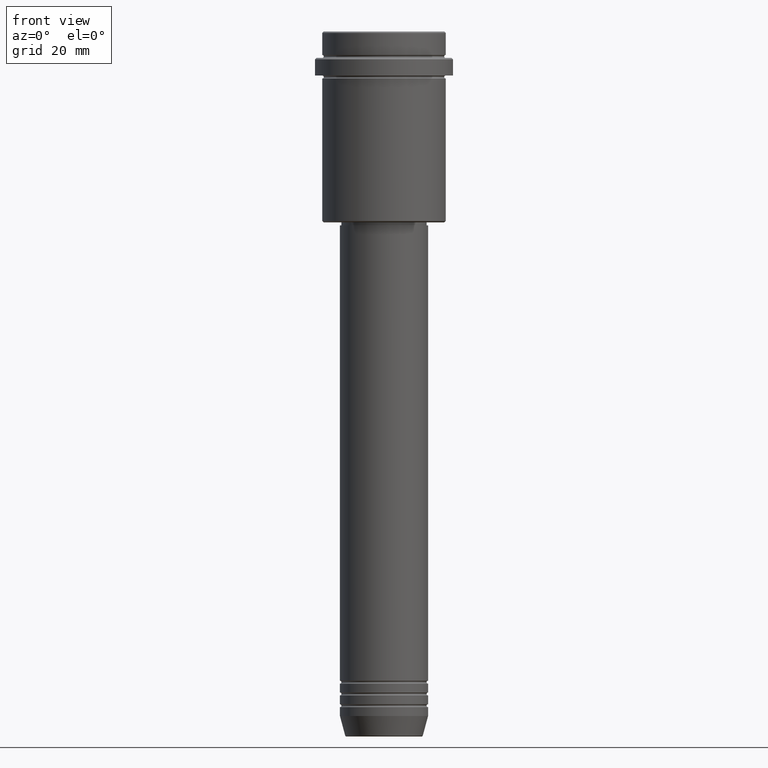
[diagram: clean part render]
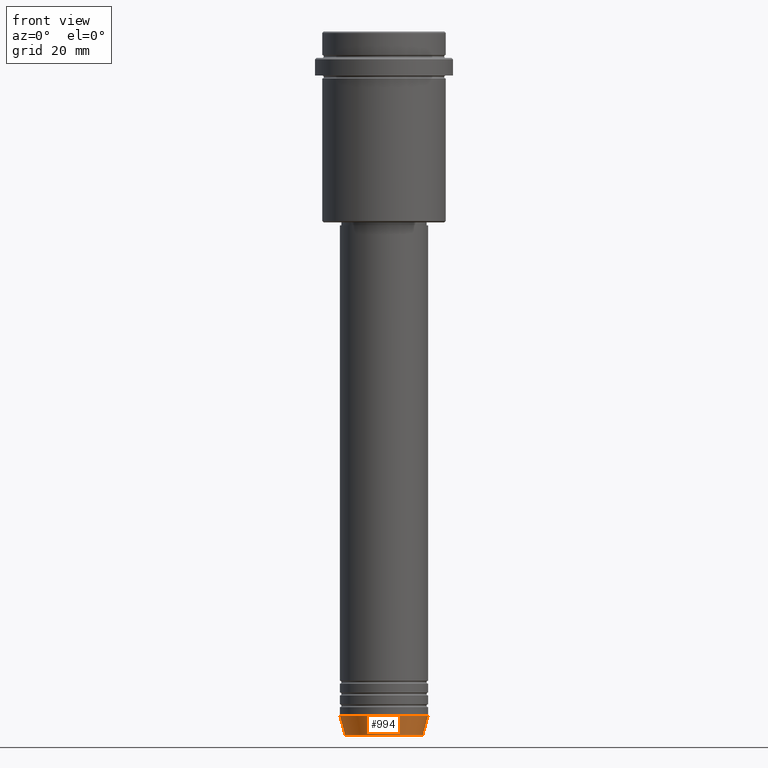
[diagram: same view with one face highlighted and labeled with its STEP entity id]
A machine part, front view. The second image highlights one B-rep face of the part: STEP entity #994.
In plain terms, the highlighted conical surface has half-angle 15 deg.
Its self-contained STEP definition (entity closure, byte-faithful):
#21 = CARTESIAN_POINT ( 'NONE',  ( -13.22365507213719837, 1.728200442216588780E-15, -239.6294095225512422 ) ) ;
#27 = CONICAL_SURFACE ( 'NONE', #763, 15.00000000000000000, 0.2617993877991497964 ) ;
#60 = ORIENTED_EDGE ( 'NONE', *, *, #379, .T. ) ;
#71 = AXIS2_PLACEMENT_3D ( 'NONE', #954, #1188, #1386 ) ;
#96 = CIRCLE ( 'NONE', #71, 13.22365507213719660 ) ;
#99 = VECTOR ( 'NONE', #674, 1000.000000000000114 ) ;
#192 = DIRECTION ( 'NONE',  ( -0.000000000000000000, -0.000000000000000000, 1.000000000000000000 ) ) ;
#285 = CARTESIAN_POINT ( 'NONE',  ( -15.00000000000000000, 1.836970198721029589E-15, -232.9999999999999716 ) ) ;
#300 = FACE_OUTER_BOUND ( 'NONE', #881, .T. ) ;
#351 = EDGE_CURVE ( 'NONE', #1252, #430, #639, .T. ) ;
#379 = EDGE_CURVE ( 'NONE', #1252, #1362, #96, .T. ) ;
#430 = VERTEX_POINT ( 'NONE', #285 ) ;
#600 = AXIS2_PLACEMENT_3D ( 'NONE', #1399, #1263, #725 ) ;
#639 = LINE ( 'NONE', #1170, #649 ) ;
#649 = VECTOR ( 'NONE', #1063, 1000.000000000000114 ) ;
#660 = ORIENTED_EDGE ( 'NONE', *, *, #1171, .T. ) ;
#674 = DIRECTION ( 'NONE',  ( 0.2588190451025210725, 0.000000000000000000, 0.9659258262890680902 ) ) ;
#725 = DIRECTION ( 'NONE',  ( 1.000000000000000000, 0.000000000000000000, 0.000000000000000000 ) ) ;
#749 = ORIENTED_EDGE ( 'NONE', *, *, #351, .F. ) ;
#763 = AXIS2_PLACEMENT_3D ( 'NONE', #825, #192, #953 ) ;
#782 = LINE ( 'NONE', #1092, #99 ) ;
#825 = CARTESIAN_POINT ( 'NONE',  ( 0.000000000000000000, 0.000000000000000000, -232.9999999999999716 ) ) ;
#877 = CIRCLE ( 'NONE', #600, 15.00000000000000000 ) ;
#881 = EDGE_LOOP ( 'NONE', ( #749, #60, #660, #1048 ) ) ;
#939 = CARTESIAN_POINT ( 'NONE',  ( 13.22365507213719660, 0.000000000000000000, -239.6294095225512422 ) ) ;
#953 = DIRECTION ( 'NONE',  ( 1.000000000000000000, 0.000000000000000000, 0.000000000000000000 ) ) ;
#954 = CARTESIAN_POINT ( 'NONE',  ( 0.000000000000000000, 0.000000000000000000, -239.6294095225512422 ) ) ;
#994 = ADVANCED_FACE ( 'NONE', ( #300 ), #27, .T. ) ;
#1048 = ORIENTED_EDGE ( 'NONE', *, *, #1319, .F. ) ;
#1063 = DIRECTION ( 'NONE',  ( -0.2588190451025210725, 3.169619151431769255E-17, 0.9659258262890680902 ) ) ;
#1092 = CARTESIAN_POINT ( 'NONE',  ( 15.00000000000000000, 0.000000000000000000, -232.9999999999999716 ) ) ;
#1170 = CARTESIAN_POINT ( 'NONE',  ( -15.00000000000000000, 1.836970198721029589E-15, -232.9999999999999716 ) ) ;
#1171 = EDGE_CURVE ( 'NONE', #1362, #1186, #782, .T. ) ;
#1186 = VERTEX_POINT ( 'NONE', #1331 ) ;
#1188 = DIRECTION ( 'NONE',  ( -0.000000000000000000, -0.000000000000000000, 1.000000000000000000 ) ) ;
#1252 = VERTEX_POINT ( 'NONE', #21 ) ;
#1263 = DIRECTION ( 'NONE',  ( -0.000000000000000000, -0.000000000000000000, 1.000000000000000000 ) ) ;
#1319 = EDGE_CURVE ( 'NONE', #430, #1186, #877, .T. ) ;
#1331 = CARTESIAN_POINT ( 'NONE',  ( 15.00000000000000000, 0.000000000000000000, -232.9999999999999716 ) ) ;
#1362 = VERTEX_POINT ( 'NONE', #939 ) ;
#1386 = DIRECTION ( 'NONE',  ( 1.000000000000000000, 0.000000000000000000, 0.000000000000000000 ) ) ;
#1399 = CARTESIAN_POINT ( 'NONE',  ( 0.000000000000000000, 0.000000000000000000, -232.9999999999999716 ) ) ;